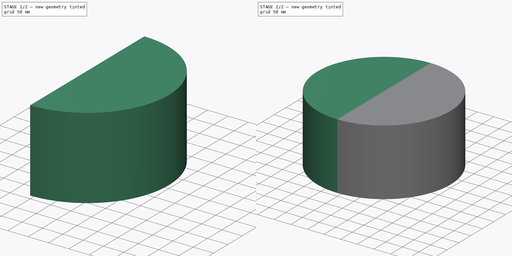
[diagram: build sequence overview — one tinted view per stage of 2, left to right]
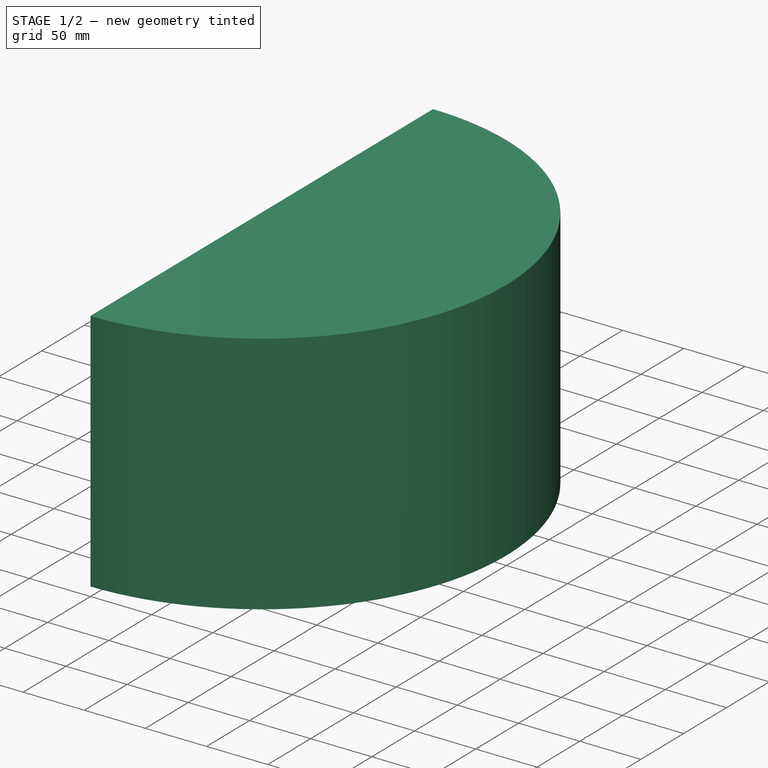
[diagram: stage 1 of 2 — iso view after this stage's code; geometry added in this stage tinted green]
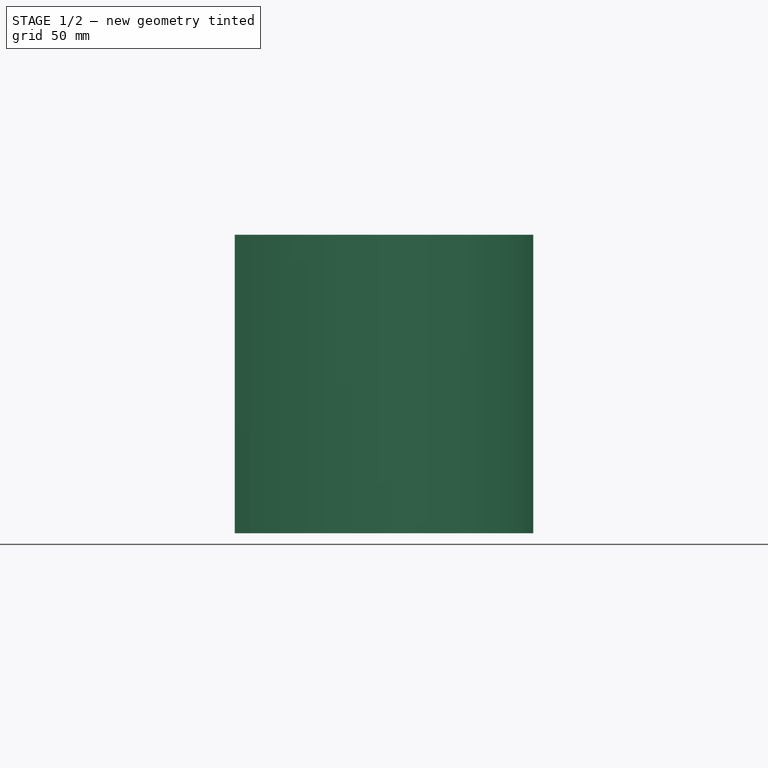
[diagram: stage 1 of 2 — front view after this stage's code; geometry added in this stage tinted green]
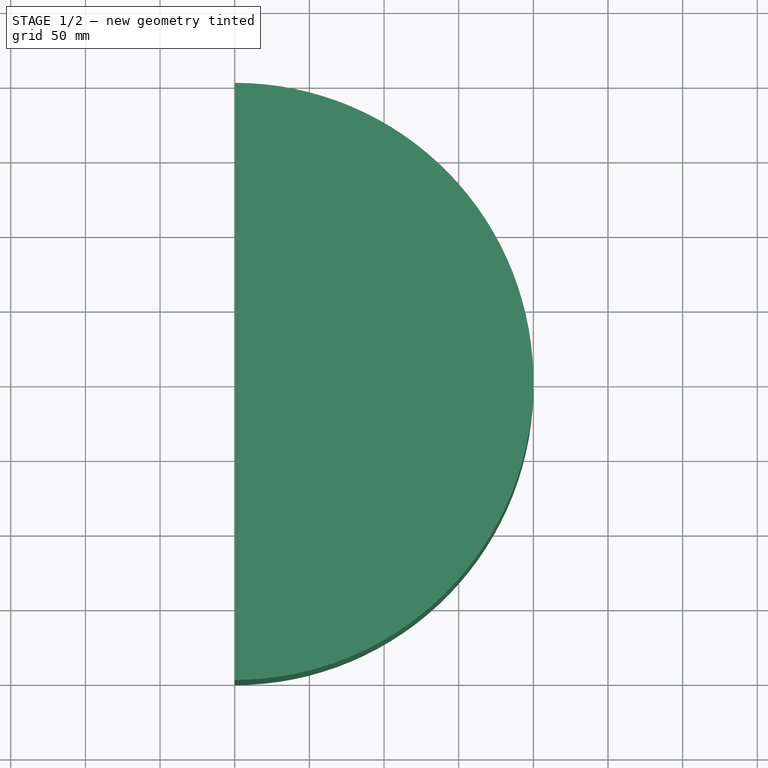
[diagram: stage 1 of 2 — top view after this stage's code; geometry added in this stage tinted green]
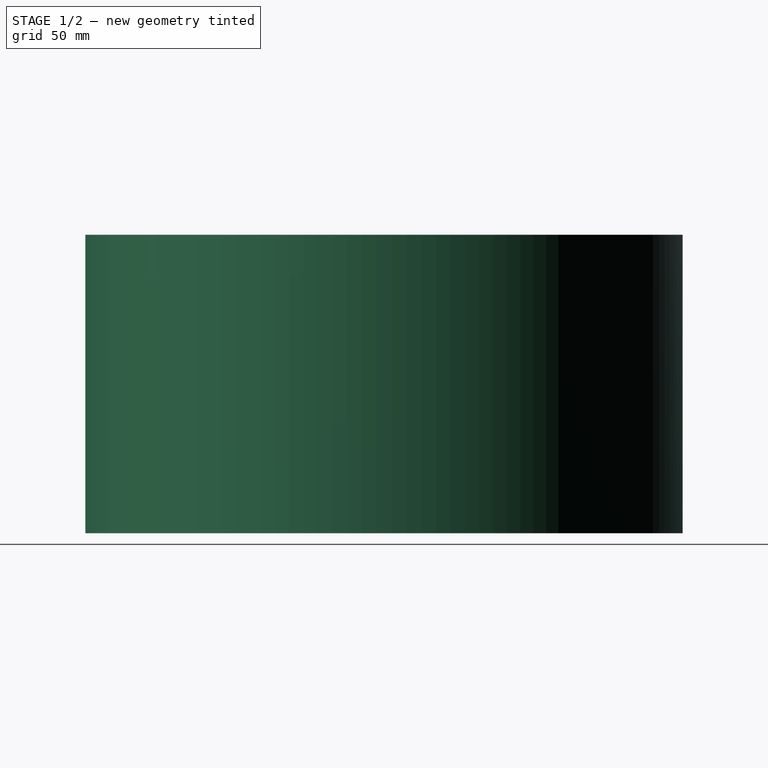
[diagram: stage 1 of 2 — right view after this stage's code; geometry added in this stage tinted green]
FCSTD DOCUMENT  (FreeCAD 0.19R)
Label: test_mixed_dielectric
License: All rights reserved
LicenseURL: http://en.wikipedia.org/wiki/All_rights_reserved
objects: Sketcher::SketchObject×2, PartDesign::Pad×2, PartDesign::Body×2
note: 8 computed .brp shape members not serialized (recipe doc carries the construction recipe); baked Part::Feature solids carry a one-line shape summary decoded from their .brp

FEATURE [PartDesign::Body] Body  label="Body1"
  Group = -> [Sketch,Pad]
  Origin = -> Origin
  Tip = -> Pad
FEATURE [Sketcher::SketchObject] Sketch001
  FullyConstrained = false
  MapMode = 5
  Support = -> [XY_Plane001]
  sketch-geometry (2):
    g0: LineSegment StartX=-2.45e-14 StartY=200 StartZ=0 EndX=2.45e-14 EndY=-200 EndZ=0
    g1: ArcOfCircle CenterX=0.00405481 CenterY=1.08e-14 CenterZ=0 NormalX=0 NormalY=0 NormalZ=1 AngleXU=0 Radius=200 StartAngle=4.71237 EndAngle=7.854
  constraints (5):
    c: Coincident(g1,g0)
    c: Coincident(g0,g1)
    c: Symmetric(g0,g0,g-1)
    c: Tangent(g0,g-2) = 1.5708
    c: Radius(g1) = 200
FEATURE [PartDesign::Pad] Pad001
  Direction = (1,1,1)
  Length = 200
  Length2 = 100
  Midplane = true
  Profile = -> Sketch001
  Type = 0
FEATURE [PartDesign::Body] Body001  label="Body2"
  Group = -> [Sketch001,Pad001]
  Origin = -> Origin001
  Tip = -> Pad001
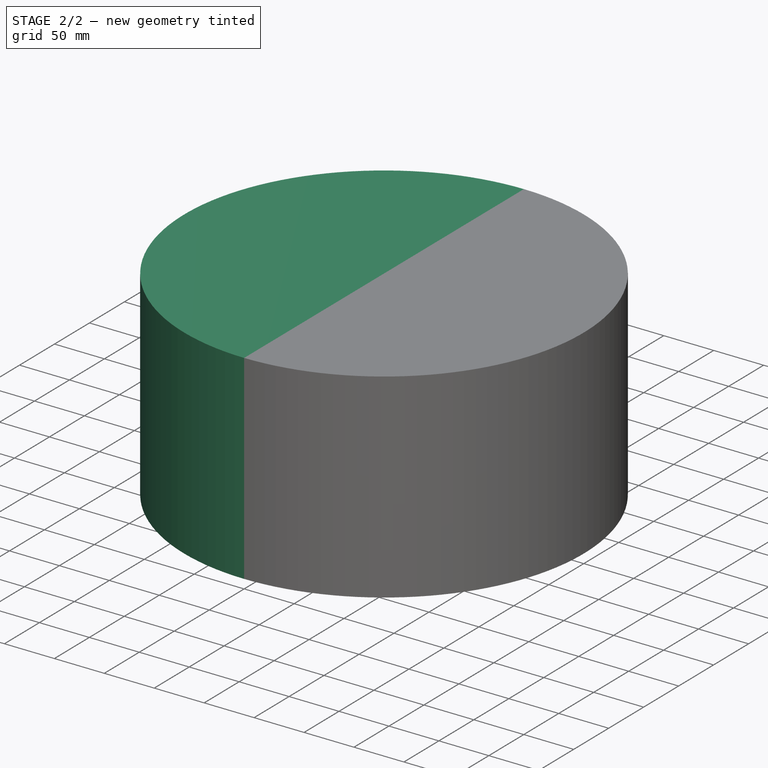
[diagram: stage 2 of 2 — iso view after this stage's code; geometry added in this stage tinted green]
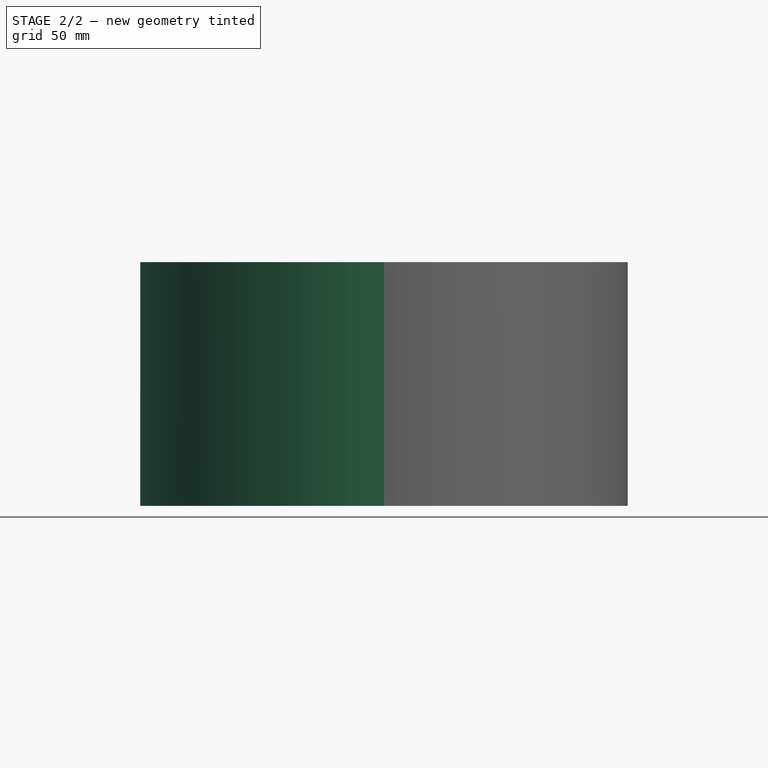
[diagram: stage 2 of 2 — front view after this stage's code; geometry added in this stage tinted green]
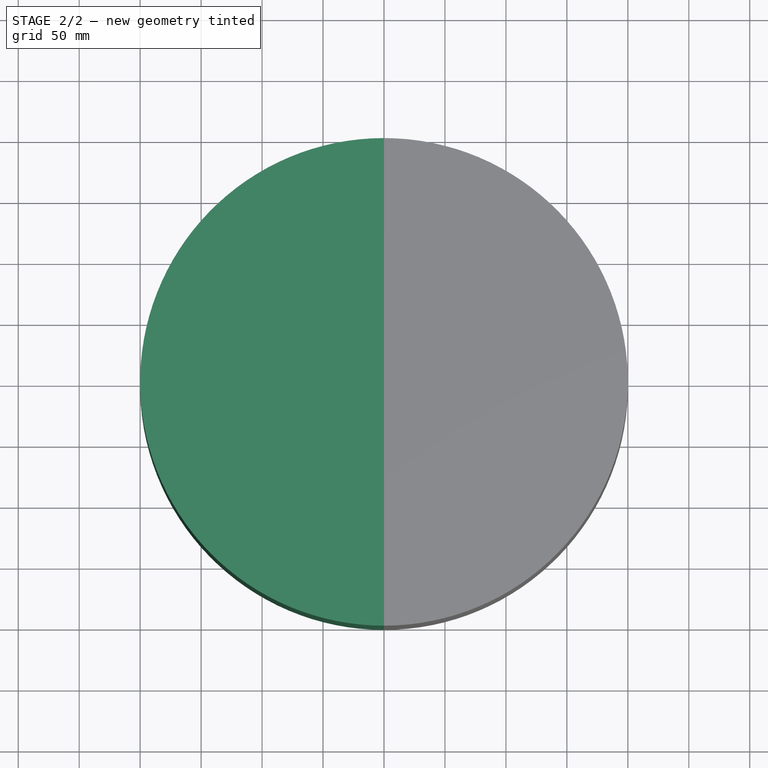
[diagram: stage 2 of 2 — top view after this stage's code; geometry added in this stage tinted green]
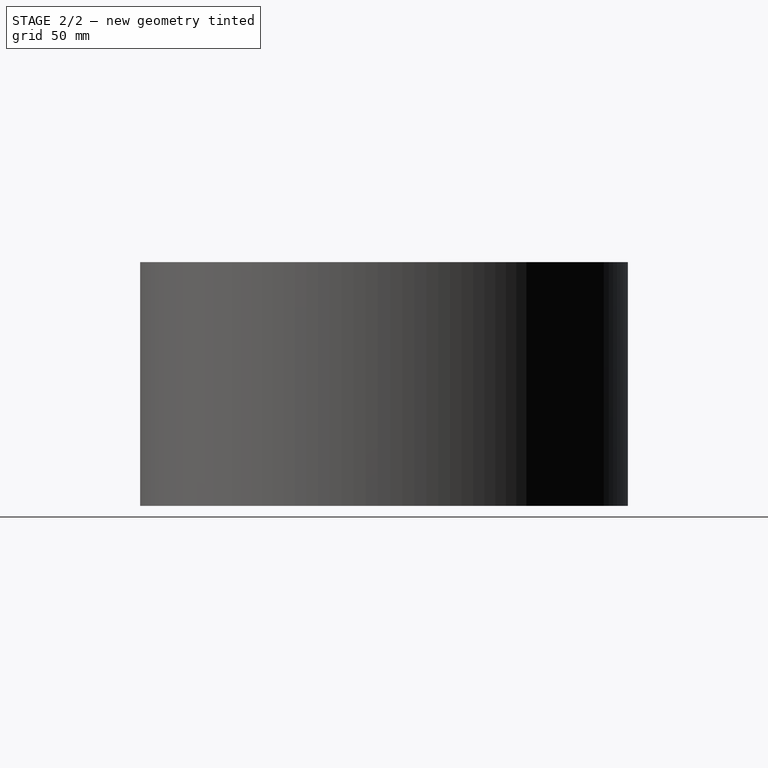
[diagram: stage 2 of 2 — right view after this stage's code; geometry added in this stage tinted green]
FEATURE [Sketcher::SketchObject] Sketch
  FullyConstrained = true
  MapMode = 5
  Support = -> [XY_Plane]
  sketch-geometry (2):
    g0: LineSegment StartX=1.22e-14 StartY=200 StartZ=0 EndX=0 EndY=-200 EndZ=0
    g1: ArcOfCircle CenterX=0 CenterY=0 CenterZ=0 NormalX=0 NormalY=0 NormalZ=1 AngleXU=0 Radius=200 StartAngle=1.5708 EndAngle=4.71239
  constraints (6):
    c: PointOnObject(g0,g-2)
    c: Coincident(g1,g-1)
    c: PointOnObject(g1,g-2)
    c: Symmetric(g0,g0,g1)
    c: Coincident(g1,g0)
    c: Radius(g1) = 200
FEATURE [PartDesign::Pad] Pad
  Direction = (1,1,1)
  Length = 200
  Length2 = 100
  Midplane = true
  Profile = -> Sketch
  Type = 0
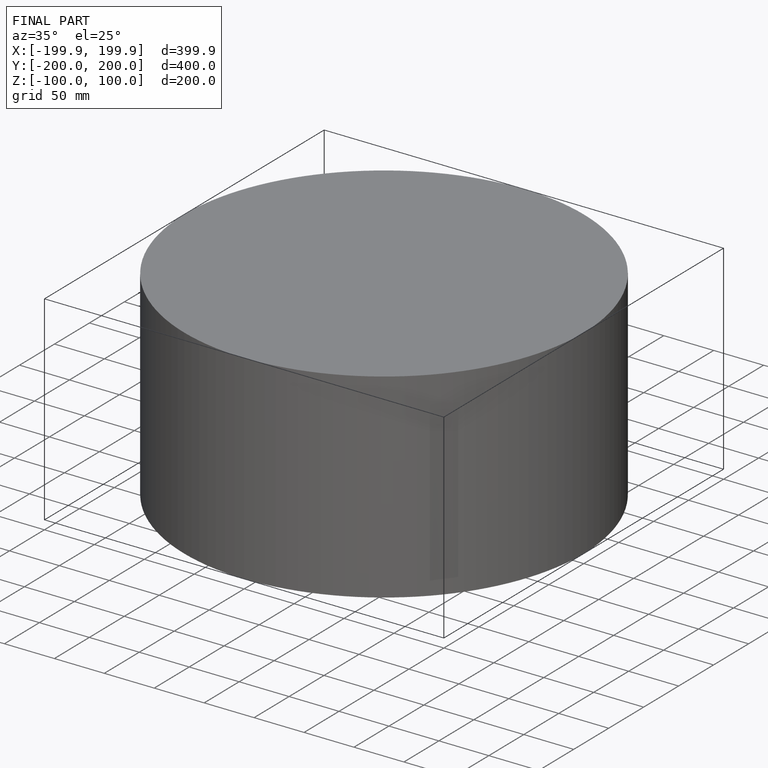
[diagram: finished part — iso view with bounding-box wireframe]
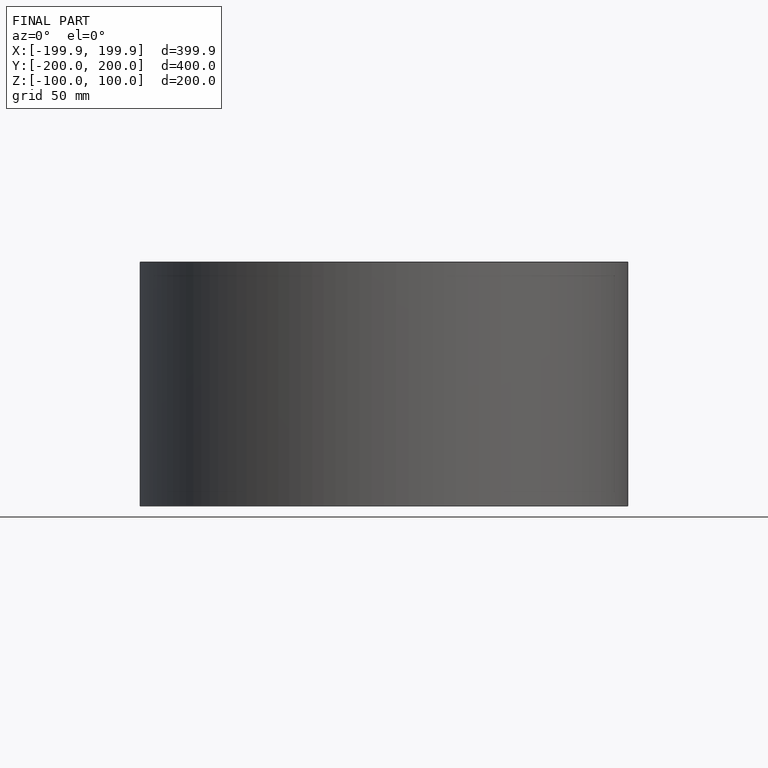
[diagram: finished part — front view with bounding-box wireframe]
